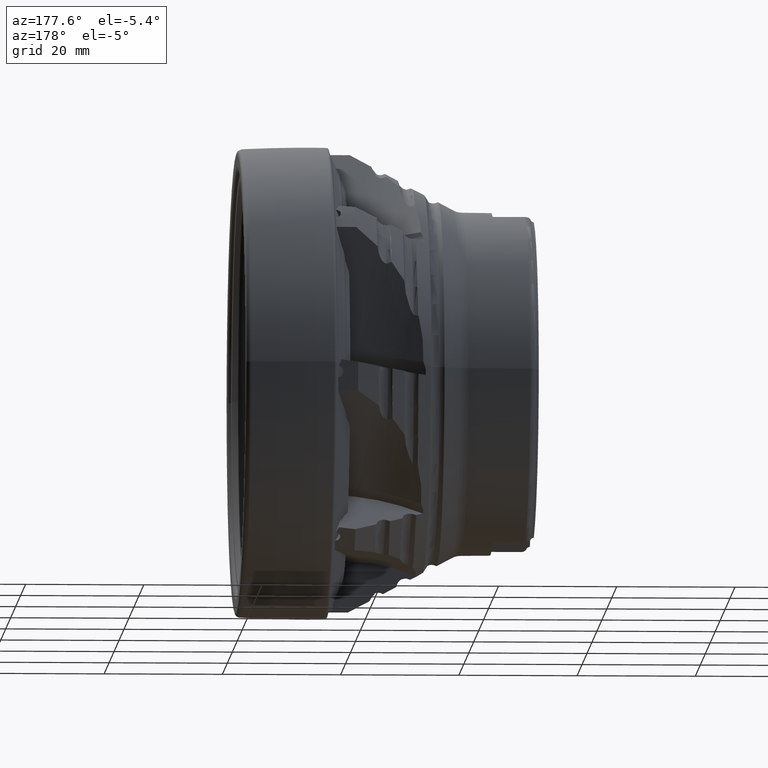
[diagram: clean part render]
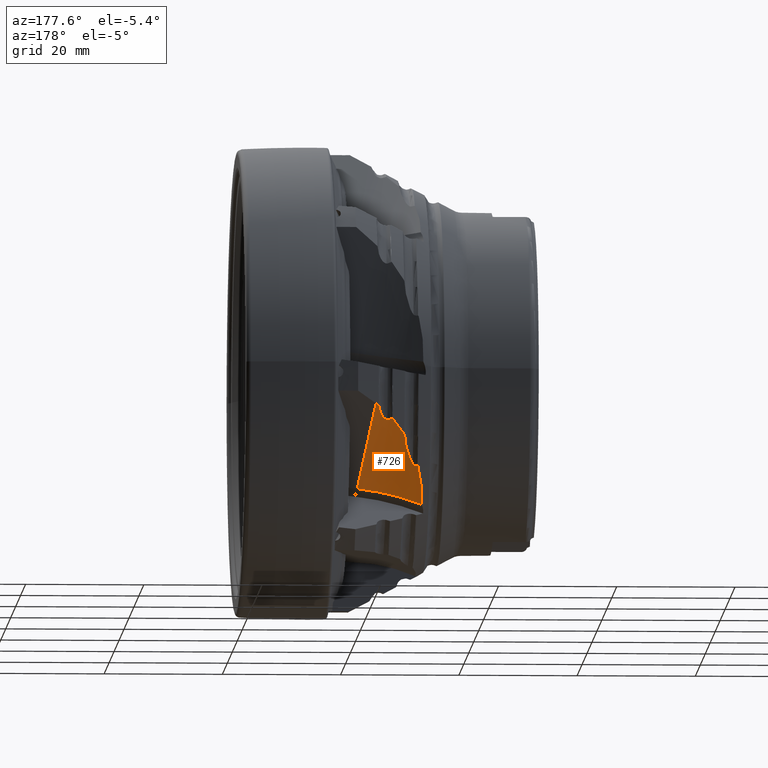
[diagram: same view with one face highlighted and labeled with its STEP entity id]
A machine part, auxiliary view. The second image highlights one B-rep face of the part: STEP entity #726.
In plain terms, the highlighted cylindrical surface (partial cylindrical patch) has radius 28 mm, axis along (0.1392, -0.7002, -0.7002).
Its self-contained STEP definition (entity closure, byte-faithful):
#38 = CARTESIAN_POINT ( 'NONE',  ( -26.16175518919590104, 32.11414381832994991, -11.91432371241001142 ) ) ;
#195 = B_SPLINE_CURVE_WITH_KNOTS ( 'NONE', 3,
 ( #17712, #13517, #2492, #17882, #8052, #10614, #5232, #13706, #10705, #12334 ),
 .UNSPECIFIED., .F., .F.,
 ( 4, 2, 2, 2, 4 ),
 ( 2.874024415713303998E-07, 5.065854974813847298E-05, 0.0001010296970547056071, 0.0002017719916678325977, 0.0004032565808940691233 ),
 .UNSPECIFIED. ) ;
#249 = CARTESIAN_POINT ( 'NONE',  ( -26.09401459730142747, 32.36231701803426120, -11.62992699012799491 ) ) ;
#315 = DIRECTION ( 'NONE',  ( 0.1391731009600657432, -0.7002252665996790970, -0.7002252665996621106 ) ) ;
#497 = CARTESIAN_POINT ( 'NONE',  ( -21.55623755796560559, 36.10348220913488859, -7.035994660879699047 ) ) ;
#719 = ORIENTED_EDGE ( 'NONE', *, *, #3058, .F. ) ;
#726 = ADVANCED_FACE ( 'NONE', ( #15255 ), #8495, .F. ) ;
#774 = CARTESIAN_POINT ( 'NONE',  ( -21.59371293881882536, 36.07821115639085718, -7.062301227052116381 ) ) ;
#882 = CARTESIAN_POINT ( 'NONE',  ( -23.88970935413212970, 34.29614882577736523, -9.093066889401731245 ) ) ;
#902 = CARTESIAN_POINT ( 'NONE',  ( -22.08995577937819732, 34.70913704770715924, -8.466447189720694766 ) ) ;
#1042 = CARTESIAN_POINT ( 'NONE',  ( -23.86213381451883464, 34.27668859746890462, -9.108704011535962763 ) ) ;
#1069 = CARTESIAN_POINT ( 'NONE',  ( -22.65820632367057286, 34.19307938149351855, -9.037383353654615092 ) ) ;
#1102 = VERTEX_POINT ( 'NONE', #16702 ) ;
#1170 = CARTESIAN_POINT ( 'NONE',  ( -21.71649745803910747, 35.52179470989273113, -7.626067041246231248 ) ) ;
#1218 = CARTESIAN_POINT ( 'NONE',  ( -27.50863791426120031, 28.74475617949686779, -16.03441202762062545 ) ) ;
#1510 = AXIS2_PLACEMENT_3D ( 'NONE', #4181, #15210, #5361 ) ;
#1613 = CARTESIAN_POINT ( 'NONE',  ( -28.04029982979328040, 28.53103522792181934, -16.50923514190410302 ) ) ;
#1623 = CARTESIAN_POINT ( 'NONE',  ( -26.11626718921545987, 32.31558539369395788, -11.68636442633835060 ) ) ;
#1697 = CARTESIAN_POINT ( 'NONE',  ( -21.12345395800541326, 36.39184948891889348, -6.741664163460957759 ) ) ;
#1810 = EDGE_CURVE ( 'NONE', #12861, #3825, #17896, .T. ) ;
#2014 = CARTESIAN_POINT ( 'NONE',  ( -26.16175518919590104, 32.11414381832994991, -11.91432371241001142 ) ) ;
#2038 = CARTESIAN_POINT ( 'NONE',  ( -21.41335075078888650, 36.19983613425735314, -6.935692511504356617 ) ) ;
#2132 = CARTESIAN_POINT ( 'NONE',  ( -21.61705818974931148, 36.04516240716278475, -7.096196425868134483 ) ) ;
#2157 = B_SPLINE_CURVE_WITH_KNOTS ( 'NONE', 3,
 ( #14525, #15786, #17159, #15529 ),
 .UNSPECIFIED., .F., .F.,
 ( 4, 4 ),
 ( 3.278489110261244362E-07, 0.003657473883026092845 ),
 .UNSPECIFIED. ) ;
#2265 = CARTESIAN_POINT ( 'NONE',  ( -22.29625772081565316, 34.46580674174693115, -8.727950624509382749 ) ) ;
#2492 = CARTESIAN_POINT ( 'NONE',  ( -28.39026883792161016, 28.71126005577496088, -16.48077239331862742 ) ) ;
#2511 = EDGE_CURVE ( 'NONE', #3657, #8685, #195, .T. ) ;
#2523 = EDGE_CURVE ( 'NONE', #7459, #13992, #3429, .T. ) ;
#2704 = LINE ( 'NONE', #12551, #15072 ) ;
#2745 = EDGE_CURVE ( 'NONE', #11616, #3657, #8219, .T. ) ;
#2763 = CARTESIAN_POINT ( 'NONE',  ( -23.27964391734388272, 34.05367892804062535, -9.252135039635630775 ) ) ;
#2768 = CARTESIAN_POINT ( 'NONE',  ( -18.18918041566172761, 41.42755206531325740, -41.30394133351279606 ) ) ;
#2922 = CARTESIAN_POINT ( 'NONE',  ( -24.04999999999965610, 34.26612448244959808, -9.150859162263207836 ) ) ;
#3058 = EDGE_CURVE ( 'NONE', #3825, #11616, #5144, .T. ) ;
#3324 = ORIENTED_EDGE ( 'NONE', *, *, #6886, .F. ) ;
#3429 = B_SPLINE_CURVE_WITH_KNOTS ( 'NONE', 3,
 ( #1042, #882, #17524, #16350, #10992, #6605 ),
 .UNSPECIFIED., .F., .F.,
 ( 4, 2, 4 ),
 ( 2.676777038156775390E-07, 0.0001109178435940617207, 0.0002215680094843077656 ),
 .UNSPECIFIED. ) ;
#3495 = EDGE_CURVE ( 'NONE', #8786, #1102, #2704, .T. ) ;
#3569 = CARTESIAN_POINT ( 'NONE',  ( -21.64974257213606990, 35.97708672844014899, -7.165618688802499747 ) ) ;
#3657 = VERTEX_POINT ( 'NONE', #17961 ) ;
#3698 = ORIENTED_EDGE ( 'NONE', *, *, #4307, .F. ) ;
#3825 = VERTEX_POINT ( 'NONE', #2014 ) ;
#4133 = CARTESIAN_POINT ( 'NONE',  ( -23.15310013455612292, 34.05967667203859861, -9.230002736192943757 ) ) ;
#4181 = CARTESIAN_POINT ( 'NONE',  ( -18.49250115703377872, 42.95365765272416780, -39.77783574610192119 ) ) ;
#4307 = EDGE_CURVE ( 'NONE', #12902, #4716, #6103, .T. ) ;
#4482 = ORIENTED_EDGE ( 'NONE', *, *, #4699, .F. ) ;
#4699 = EDGE_CURVE ( 'NONE', #13992, #12861, #2157, .T. ) ;
#4716 = VERTEX_POINT ( 'NONE', #8947 ) ;
#4954 = CARTESIAN_POINT ( 'NONE',  ( -21.55623755796560559, 36.10348220913488859, -7.035994660879699047 ) ) ;
#4985 = CARTESIAN_POINT ( 'NONE',  ( -21.83813139593141983, 35.15121554534185577, -8.005057128631284158 ) ) ;
#5144 = B_SPLINE_CURVE_WITH_KNOTS ( 'NONE', 3,
 ( #38, #11157, #12691, #12605, #9788, #13693, #13877, #8132, #6956, #13780, #1218, #16690 ),
 .UNSPECIFIED., .F., .F.,
 ( 4, 2, 2, 2, 2, 4 ),
 ( 4.857968298762609911E-06, 0.001443125873734926170, 0.002881393779171089950, 0.004319661684607253513, 0.005038795637325335294, 0.005757929590043417076 ),
 .UNSPECIFIED. ) ;
#5232 = CARTESIAN_POINT ( 'NONE',  ( -28.47875058022144401, 28.67343002812205199, -16.56625290894481495 ) ) ;
#5361 = DIRECTION ( 'NONE',  ( 0.0000000000000000000, 0.7071067811865389130, -0.7071067811865561215 ) ) ;
#5436 = CARTESIAN_POINT ( 'NONE',  ( -29.29058633282406277, 25.35364829452283431, -20.69375190650251284 ) ) ;
#5694 = CARTESIAN_POINT ( 'NONE',  ( -27.90976683512981538, 28.53684980722363917, -16.44180127032585759 ) ) ;
#5795 = CARTESIAN_POINT ( 'NONE',  ( -21.26908251589543752, 36.29593979564364759, -6.837573856736229416 ) ) ;
#6062 = CARTESIAN_POINT ( 'NONE',  ( -21.65869159240060782, 35.94120128505893064, -7.202008453368216934 ) ) ;
#6103 = B_SPLINE_CURVE_WITH_KNOTS ( 'NONE', 3,
 ( #17738, #10635, #1170, #4985, #12180, #902, #6723, #2265, #8081, #9275, #1069, #7904, #6541, #13541 ),
 .UNSPECIFIED., .F., .F.,
 ( 4, 2, 2, 2, 2, 2, 4 ),
 ( 3.355597490311571863E-06, 0.0008190747807178445786, 0.001634793963945377565, 0.002042653555559150076, 0.002450513147172922804, 0.002858372738786695531, 0.003266232330400468259 ),
 .UNSPECIFIED. ) ;
#6533 = CARTESIAN_POINT ( 'NONE',  ( -28.54999999999718341, 28.54358186281848120, -16.74491813645654759 ) ) ;
#6541 = CARTESIAN_POINT ( 'NONE',  ( -23.01825798841930748, 34.06606773017558254, -9.206419062389121777 ) ) ;
#6584 = ORIENTED_EDGE ( 'NONE', *, *, #1810, .F. ) ;
#6605 = CARTESIAN_POINT ( 'NONE',  ( -24.04999999999965610, 34.26612448244959808, -9.150859162263207836 ) ) ;
#6715 = CARTESIAN_POINT ( 'NONE',  ( -29.05432562693074772, 26.98452368818883684, -18.73613319299325397 ) ) ;
#6723 = CARTESIAN_POINT ( 'NONE',  ( -22.15287788597191110, 34.62546166169772732, -8.555405606588166734 ) ) ;
#6780 = CARTESIAN_POINT ( 'NONE',  ( -21.12345395800541326, 36.39184948891889348, -6.741664163460957759 ) ) ;
#6851 = CARTESIAN_POINT ( 'NONE',  ( -21.66175518919607867, 35.90483834589942802, -7.238696711007247764 ) ) ;
#6875 = CARTESIAN_POINT ( 'NONE',  ( -27.74519714397492365, 28.59452534386285194, -16.30356319841307666 ) ) ;
#6886 = EDGE_CURVE ( 'NONE', #8685, #10543, #10311, .T. ) ;
#6956 = CARTESIAN_POINT ( 'NONE',  ( -27.19111346026899412, 29.11548994824131853, -15.49870288424986242 ) ) ;
#7189 = EDGE_CURVE ( 'NONE', #13507, #12902, #8984, .T. ) ;
#7459 = VERTEX_POINT ( 'NONE', #11591 ) ;
#7480 = ORIENTED_EDGE ( 'NONE', *, *, #3495, .T. ) ;
#7514 = ORIENTED_EDGE ( 'NONE', *, *, #17454, .F. ) ;
#7683 = CARTESIAN_POINT ( 'NONE',  ( -26.05623755796725050, 32.40296375357589653, -11.57539212229185566 ) ) ;
#7904 = CARTESIAN_POINT ( 'NONE',  ( -22.88855377335161378, 34.09847361088424833, -9.158340236320665184 ) ) ;
#8052 = CARTESIAN_POINT ( 'NONE',  ( -28.43350235505034718, 28.70794626165834629, -16.50579917678836139 ) ) ;
#8081 = CARTESIAN_POINT ( 'NONE',  ( -22.37667978834030791, 34.38998378652723176, -8.811381263258077468 ) ) ;
#8132 = CARTESIAN_POINT ( 'NONE',  ( -27.10094642001384813, 29.24820712956054791, -15.31872844844640547 ) ) ;
#8219 = B_SPLINE_CURVE_WITH_KNOTS ( 'NONE', 3,
 ( #17997, #12631, #6875, #12444, #5694, #1613, #15533, #11096, #15360, #13904 ),
 .UNSPECIFIED., .F., .F.,
 ( 4, 2, 2, 2, 4 ),
 ( 0.005757929590043417076, 0.005978103728821191135, 0.006198277867598965193, 0.006418452006376740120, 0.006638626145154514178 ),
 .UNSPECIFIED. ) ;
#8309 = CARTESIAN_POINT ( 'NONE',  ( -23.86213381451883464, 34.27668859746890462, -9.108704011535962763 ) ) ;
#8390 = CARTESIAN_POINT ( 'NONE',  ( -28.54999999999718341, 28.54358186281848120, -16.74491813645654759 ) ) ;
#8495 = CYLINDRICAL_SURFACE ( 'NONE', #11792, 27.99999999999991829 ) ;
#8608 = CARTESIAN_POINT ( 'NONE',  ( -26.14925088964410804, 32.21755001575387922, -11.80060546214792261 ) ) ;
#8685 = VERTEX_POINT ( 'NONE', #8390 ) ;
#8786 = VERTEX_POINT ( 'NONE', #6780 ) ;
#8947 = CARTESIAN_POINT ( 'NONE',  ( -23.15310013455612292, 34.05967667203859861, -9.230002736192943757 ) ) ;
#8984 = B_SPLINE_CURVE_WITH_KNOTS ( 'NONE', 3,
 ( #497, #774, #2132, #3569, #6062, #14437 ),
 .UNSPECIFIED., .F., .F.,
 ( 4, 2, 4 ),
 ( 2.735478212639568486E-07, 0.0001541642264782250185, 0.0003080549051351860832 ),
 .UNSPECIFIED. ) ;
#9275 = CARTESIAN_POINT ( 'NONE',  ( -22.55691099272845790, 34.25431909020932864, -8.965325781284089857 ) ) ;
#9414 = B_SPLINE_CURVE_WITH_KNOTS ( 'NONE', 3,
 ( #4133, #2763, #13116, #9705, #11243, #8309 ),
 .UNSPECIFIED., .F., .F.,
 ( 4, 2, 4 ),
 ( 0.003266232330400468259, 0.003648991705326964236, 0.004031751080253460212 ),
 .UNSPECIFIED. ) ;
#9705 = CARTESIAN_POINT ( 'NONE',  ( -23.65631055655098081, 34.15027415088646023, -9.206499793569271617 ) ) ;
#9788 = CARTESIAN_POINT ( 'NONE',  ( -26.47773301691560732, 30.54010681929876725, -13.69540334590464425 ) ) ;
#10178 = CARTESIAN_POINT ( 'NONE',  ( -26.15858305168498532, 32.16650054105593881, -11.85772640560136892 ) ) ;
#10311 = B_SPLINE_CURVE_WITH_KNOTS ( 'NONE', 3,
 ( #6533, #16628, #6715, #5436, #10723, #13809 ),
 .UNSPECIFIED., .F., .F.,
 ( 4, 2, 4 ),
 ( 8.523296967011780215E-07, 0.003838605333602818255, 0.007676358337508935176 ),
 .UNSPECIFIED. ) ;
#10543 = VERTEX_POINT ( 'NONE', #12985 ) ;
#10614 = CARTESIAN_POINT ( 'NONE',  ( -28.46472586455569243, 28.68992864534749998, -16.54111010196067966 ) ) ;
#10635 = CARTESIAN_POINT ( 'NONE',  ( -21.67805444874897347, 35.71137653516271371, -7.433889314236895807 ) ) ;
#10705 = CARTESIAN_POINT ( 'NONE',  ( -28.53461363328777267, 28.58303748801684208, -16.69370506693721268 ) ) ;
#10723 = CARTESIAN_POINT ( 'NONE',  ( -29.32263468830622699, 24.51220055275368637, -21.65927712907323510 ) ) ;
#10992 = CARTESIAN_POINT ( 'NONE',  ( -24.02749874486666215, 34.28452260320409550, -9.127978975714800214 ) ) ;
#11096 = CARTESIAN_POINT ( 'NONE',  ( -28.25059067918947520, 28.60195671571861809, -16.53225397963004184 ) ) ;
#11157 = CARTESIAN_POINT ( 'NONE',  ( -26.18160270408413481, 31.78655687411967889, -12.26844325661835811 ) ) ;
#11230 = ORIENTED_EDGE ( 'NONE', *, *, #2511, .F. ) ;
#11243 = CARTESIAN_POINT ( 'NONE',  ( -23.76534592525983669, 34.20838478756768808, -9.163589031362542769 ) ) ;
#11469 = ORIENTED_EDGE ( 'NONE', *, *, #7189, .F. ) ;
#11591 = CARTESIAN_POINT ( 'NONE',  ( -23.86213381451883464, 34.27668859746890462, -9.108704011535962763 ) ) ;
#11616 = VERTEX_POINT ( 'NONE', #14225 ) ;
#11792 = AXIS2_PLACEMENT_3D ( 'NONE', #2768, #315, #14071 ) ;
#12180 = CARTESIAN_POINT ( 'NONE',  ( -21.92164612986421446, 34.96894956000488719, -8.193125593222749359 ) ) ;
#12334 = CARTESIAN_POINT ( 'NONE',  ( -28.54999999999718341, 28.54358186281848120, -16.74491813645654759 ) ) ;
#12444 = CARTESIAN_POINT ( 'NONE',  ( -27.85114608547701920, 28.55256151777903284, -16.39762569897879985 ) ) ;
#12551 = CARTESIAN_POINT ( 'NONE',  ( -18.49250115703377872, 23.15466777950108224, -19.97884587287835956 ) ) ;
#12605 = CARTESIAN_POINT ( 'NONE',  ( -26.38102417444143555, 30.84456064650204254, -13.33715420457249579 ) ) ;
#12631 = CARTESIAN_POINT ( 'NONE',  ( -27.69732950909696001, 28.62110297706300699, -16.25307114265917718 ) ) ;
#12691 = CARTESIAN_POINT ( 'NONE',  ( -26.23305293733251631, 31.46780356011970170, -12.62367016228955841 ) ) ;
#12820 = CARTESIAN_POINT ( 'NONE',  ( -26.05623755796725050, 32.40296375357589653, -11.57539212229185566 ) ) ;
#12861 = VERTEX_POINT ( 'NONE', #7683 ) ;
#12902 = VERTEX_POINT ( 'NONE', #6851 ) ;
#12963 = ORIENTED_EDGE ( 'NONE', *, *, #2745, .F. ) ;
#12985 = CARTESIAN_POINT ( 'NONE',  ( -29.27311110032949770, 23.64110729253205889, -22.60798286858556949 ) ) ;
#13066 = CARTESIAN_POINT ( 'NONE',  ( -21.55623755796560559, 36.10348220913488859, -7.035994660879699047 ) ) ;
#13116 = CARTESIAN_POINT ( 'NONE',  ( -23.41242640700528099, 34.07158100546769930, -9.251935295509902346 ) ) ;
#13264 = EDGE_LOOP ( 'NONE', ( #11230, #12963, #719, #6584, #4482, #16002, #7514, #3698, #11469, #16332, #7480, #15973, #3324 ) ) ;
#13507 = VERTEX_POINT ( 'NONE', #4954 ) ;
#13517 = CARTESIAN_POINT ( 'NONE',  ( -28.37383458877555498, 28.70257650399910432, -16.48221477993527628 ) ) ;
#13541 = CARTESIAN_POINT ( 'NONE',  ( -23.15310013455612292, 34.05967667203859861, -9.230002736192943757 ) ) ;
#13693 = CARTESIAN_POINT ( 'NONE',  ( -26.71360237392339343, 29.94650108586843729, -14.41638235430051651 ) ) ;
#13706 = CARTESIAN_POINT ( 'NONE',  ( -28.51697997293544873, 28.62143824266708592, -16.64255979428526189 ) ) ;
#13780 = CARTESIAN_POINT ( 'NONE',  ( -27.39602218158717761, 28.86477789956972373, -15.85596298230608880 ) ) ;
#13809 = CARTESIAN_POINT ( 'NONE',  ( -29.27311110032949770, 23.64110729253205889, -22.60798286858556949 ) ) ;
#13877 = CARTESIAN_POINT ( 'NONE',  ( -26.85150905986042247, 29.65808845449959463, -14.77776221024327263 ) ) ;
#13904 = CARTESIAN_POINT ( 'NONE',  ( -28.36213381450417614, 28.69192133776049047, -16.48815980431882977 ) ) ;
#13992 = VERTEX_POINT ( 'NONE', #2922 ) ;
#14009 = CIRCLE ( 'NONE', #1510, 27.99999999999999289 ) ;
#14071 = DIRECTION ( 'NONE',  ( 0.0000000000000000000, 0.7071067811865389130, -0.7071067811865560104 ) ) ;
#14225 = CARTESIAN_POINT ( 'NONE',  ( -27.65310013455657412, 28.65008733011976716, -16.20181737110606335 ) ) ;
#14437 = CARTESIAN_POINT ( 'NONE',  ( -21.66175518919607867, 35.90483834589942802, -7.238696711007247764 ) ) ;
#14525 = CARTESIAN_POINT ( 'NONE',  ( -24.04999999999965610, 34.26612448244959808, -9.150859162263207836 ) ) ;
#14881 = EDGE_CURVE ( 'NONE', #8786, #13507, #14934, .T. ) ;
#14934 = B_SPLINE_CURVE_WITH_KNOTS ( 'NONE', 3,
 ( #1697, #5795, #2038, #13066 ),
 .UNSPECIFIED., .F., .F.,
 ( 4, 4 ),
 ( 0.003409954374900375264, 0.004005814591838152174 ),
 .UNSPECIFIED. ) ;
#15072 = VECTOR ( 'NONE', #17504, 1000.000000000000114 ) ;
#15210 = DIRECTION ( 'NONE',  ( 0.1391731009600657432, -0.7002252665996790970, -0.7002252665996621106 ) ) ;
#15255 = FACE_OUTER_BOUND ( 'NONE', #13264, .T. ) ;
#15360 = CARTESIAN_POINT ( 'NONE',  ( -28.31062405676298610, 28.64501461070765131, -16.51433129959028534 ) ) ;
#15529 = CARTESIAN_POINT ( 'NONE',  ( -26.05623755796725050, 32.40296375357589653, -11.57539212229185566 ) ) ;
#15533 = CARTESIAN_POINT ( 'NONE',  ( -28.11490365212777931, 28.54352326135341045, -16.53099297309994142 ) ) ;
#15724 = CARTESIAN_POINT ( 'NONE',  ( -26.16175518919590104, 32.11414381832994991, -11.91432371241001142 ) ) ;
#15786 = CARTESIAN_POINT ( 'NONE',  ( -24.79365820758084027, 33.65807335719533455, -9.907040913780800651 ) ) ;
#15973 = ORIENTED_EDGE ( 'NONE', *, *, #17552, .T. ) ;
#16002 = ORIENTED_EDGE ( 'NONE', *, *, #2523, .F. ) ;
#16332 = ORIENTED_EDGE ( 'NONE', *, *, #14881, .F. ) ;
#16350 = CARTESIAN_POINT ( 'NONE',  ( -23.99948131701419385, 34.30029567379727240, -9.106920098206273906 ) ) ;
#16628 = CARTESIAN_POINT ( 'NONE',  ( -28.85015607092048029, 27.77388452913939076, -17.74397879922359422 ) ) ;
#16690 = CARTESIAN_POINT ( 'NONE',  ( -27.65310013455657412, 28.65008733011976716, -16.20181737110606335 ) ) ;
#16702 = CARTESIAN_POINT ( 'NONE',  ( -18.49250115703377872, 23.15466777950108224, -19.97884587287835956 ) ) ;
#17159 = CARTESIAN_POINT ( 'NONE',  ( -25.46267497448567241, 33.04161574386946398, -10.71852621609209244 ) ) ;
#17454 = EDGE_CURVE ( 'NONE', #4716, #7459, #9414, .T. ) ;
#17504 = DIRECTION ( 'NONE',  ( 0.1391731009600657709, -0.7002252665996814285, -0.7002252665996595571 ) ) ;
#17524 = CARTESIAN_POINT ( 'NONE',  ( -23.92809867452111661, 34.30825545108057639, -9.086821957005163597 ) ) ;
#17552 = EDGE_CURVE ( 'NONE', #1102, #10543, #14009, .T. ) ;
#17712 = CARTESIAN_POINT ( 'NONE',  ( -28.36213381450417614, 28.69192133776049047, -16.48815980431882977 ) ) ;
#17738 = CARTESIAN_POINT ( 'NONE',  ( -21.66175518919607867, 35.90483834589942802, -7.238696711007247764 ) ) ;
#17882 = CARTESIAN_POINT ( 'NONE',  ( -28.42129897454857002, 28.71290832628066525, -16.49429636977304270 ) ) ;
#17896 = B_SPLINE_CURVE_WITH_KNOTS ( 'NONE', 3,
 ( #12820, #249, #1623, #8608, #10178, #15724 ),
 .UNSPECIFIED., .F., .F.,
 ( 4, 2, 4 ),
 ( 4.048123984254099098E-07, 0.0002299901724370043035, 0.0004595755324755832014 ),
 .UNSPECIFIED. ) ;
#17961 = CARTESIAN_POINT ( 'NONE',  ( -28.36213381450417614, 28.69192133776049047, -16.48815980431882977 ) ) ;
#17997 = CARTESIAN_POINT ( 'NONE',  ( -27.65310013455657412, 28.65008733011976716, -16.20181737110606335 ) ) ;